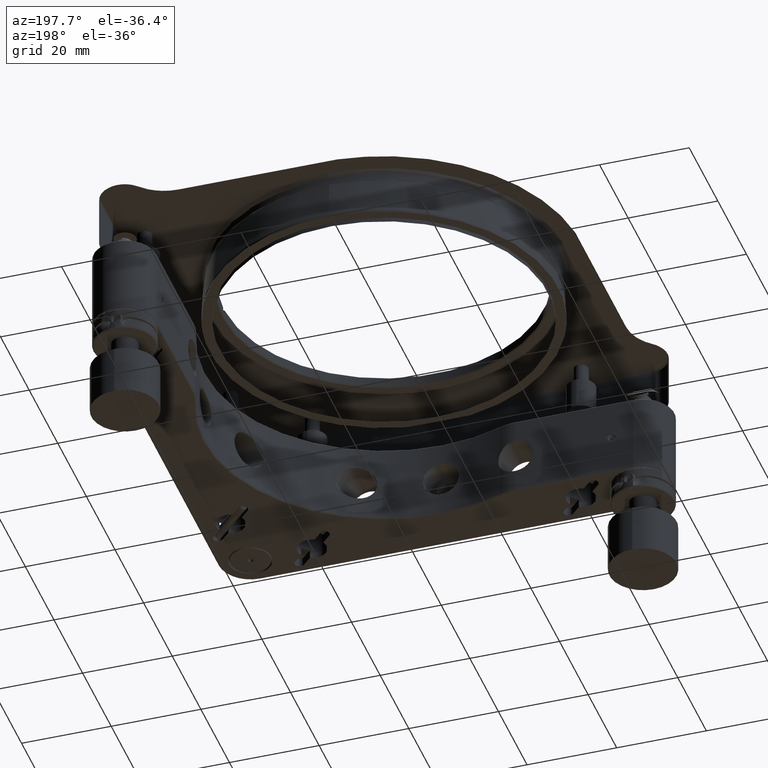
[diagram: clean part render]
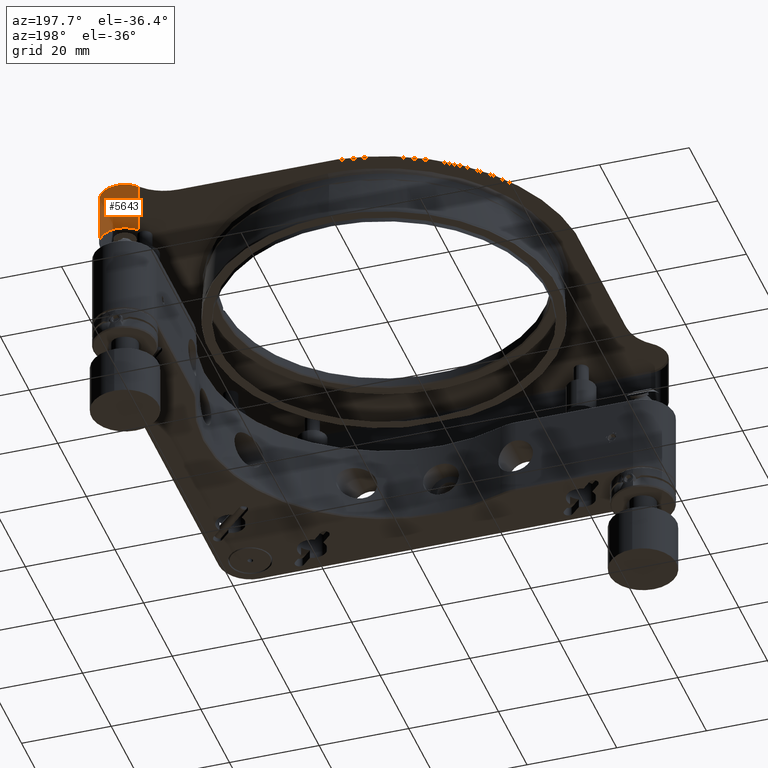
[diagram: same view with one face highlighted and labeled with its STEP entity id]
A machine part, auxiliary view. The second image highlights one B-rep face of the part: STEP entity #5643.
In plain terms, the highlighted cylindrical surface (edge-blend (fillet) strip) has radius 5.5 mm, axis along (0, -0, 1).
Its self-contained STEP definition (entity closure, byte-faithful):
#1207 = AXIS2_PLACEMENT_3D ( 'NONE', #6395, #4010, #9213 ) ;
#1212 = DIRECTION ( 'NONE',  ( -1.137208903880104210E-16, 1.216571513026822848E-16, -1.000000000000000000 ) ) ;
#1461 = DIRECTION ( 'NONE',  ( -1.261617073437678245E-15, -1.000000000000000000, 0.000000000000000000 ) ) ;
#1624 = ORIENTED_EDGE ( 'NONE', *, *, #7508, .T. ) ;
#1644 = ORIENTED_EDGE ( 'NONE', *, *, #13563, .F. ) ;
#1768 = CIRCLE ( 'NONE', #6409, 5.499999999959793939 ) ;
#2243 = LINE ( 'NONE', #13693, #9409 ) ;
#2330 = CARTESIAN_POINT ( 'NONE',  ( 43.80000000000003268, 43.79999999999991189, 24.70000000000001350 ) ) ;
#3284 = DIRECTION ( 'NONE',  ( 1.137208903880104210E-16, -1.216571513026822848E-16, 1.000000000000000000 ) ) ;
#3891 = LINE ( 'NONE', #14305, #14947 ) ;
#4010 = DIRECTION ( 'NONE',  ( 1.137208903880104210E-16, -1.216571513026822848E-16, 1.000000000000000000 ) ) ;
#4887 = CARTESIAN_POINT ( 'NONE',  ( 49.29999999997574633, 43.79999999999991189, 24.70000000001314078 ) ) ;
#5643 = ADVANCED_FACE ( 'NONE', ( #10330 ), #11947, .F. ) ;
#5746 = CARTESIAN_POINT ( 'NONE',  ( 49.29999999996568505, 43.79999999999991189, 13.29999999997916404 ) ) ;
#6395 = CARTESIAN_POINT ( 'NONE',  ( 43.80000000000003268, 43.79999999999991189, 12.99999999999999645 ) ) ;
#6409 = AXIS2_PLACEMENT_3D ( 'NONE', #16264, #13863, #12326 ) ;
#6766 = EDGE_LOOP ( 'NONE', ( #9658, #1624, #1644, #14522 ) ) ;
#6794 = CARTESIAN_POINT ( 'NONE',  ( 39.59774477079491106, 47.34838709676763102, 13.30000000000379501 ) ) ;
#7424 = EDGE_CURVE ( 'NONE', #16418, #8202, #2243, .T. ) ;
#7508 = EDGE_CURVE ( 'NONE', #16418, #13685, #1768, .T. ) ;
#8202 = VERTEX_POINT ( 'NONE', #11720 ) ;
#8999 = AXIS2_PLACEMENT_3D ( 'NONE', #2330, #1212, #1461 ) ;
#9213 = DIRECTION ( 'NONE',  ( 0.000000000000000000, -1.000000000000000000, 0.000000000000000000 ) ) ;
#9409 = VECTOR ( 'NONE', #3284, 1000.000000000000000 ) ;
#9658 = ORIENTED_EDGE ( 'NONE', *, *, #7424, .F. ) ;
#10329 = CIRCLE ( 'NONE', #8999, 5.499999999999998224 ) ;
#10330 = FACE_OUTER_BOUND ( 'NONE', #6766, .T. ) ;
#11720 = CARTESIAN_POINT ( 'NONE',  ( 39.59774477078723010, 47.34838709677411828, 24.70000000000001350 ) ) ;
#11947 = CYLINDRICAL_SURFACE ( 'NONE', #1207, 5.499999999999998224 ) ;
#12326 = DIRECTION ( 'NONE',  ( -3.784851220340701666E-15, 1.000000000000000000, 0.000000000000000000 ) ) ;
#13025 = DIRECTION ( 'NONE',  ( -1.137208903880104210E-16, 1.216571513026822848E-16, -1.000000000000000000 ) ) ;
#13563 = EDGE_CURVE ( 'NONE', #13790, #13685, #3891, .T. ) ;
#13685 = VERTEX_POINT ( 'NONE', #5746 ) ;
#13693 = CARTESIAN_POINT ( 'NONE',  ( 39.59774477078723010, 47.34838709677411117, 13.00000000000000000 ) ) ;
#13790 = VERTEX_POINT ( 'NONE', #4887 ) ;
#13863 = DIRECTION ( 'NONE',  ( -1.137208903880104210E-16, 1.216571513026822848E-16, -1.000000000000000000 ) ) ;
#14084 = EDGE_CURVE ( 'NONE', #8202, #13790, #10329, .T. ) ;
#14305 = CARTESIAN_POINT ( 'NONE',  ( 49.30000000000003268, 43.79999999999991189, 12.99999999999999645 ) ) ;
#14522 = ORIENTED_EDGE ( 'NONE', *, *, #14084, .F. ) ;
#14947 = VECTOR ( 'NONE', #13025, 1000.000000000000000 ) ;
#16264 = CARTESIAN_POINT ( 'NONE',  ( 43.80000000000003268, 43.79999999999991189, 13.30000000001518856 ) ) ;
#16418 = VERTEX_POINT ( 'NONE', #6794 ) ;